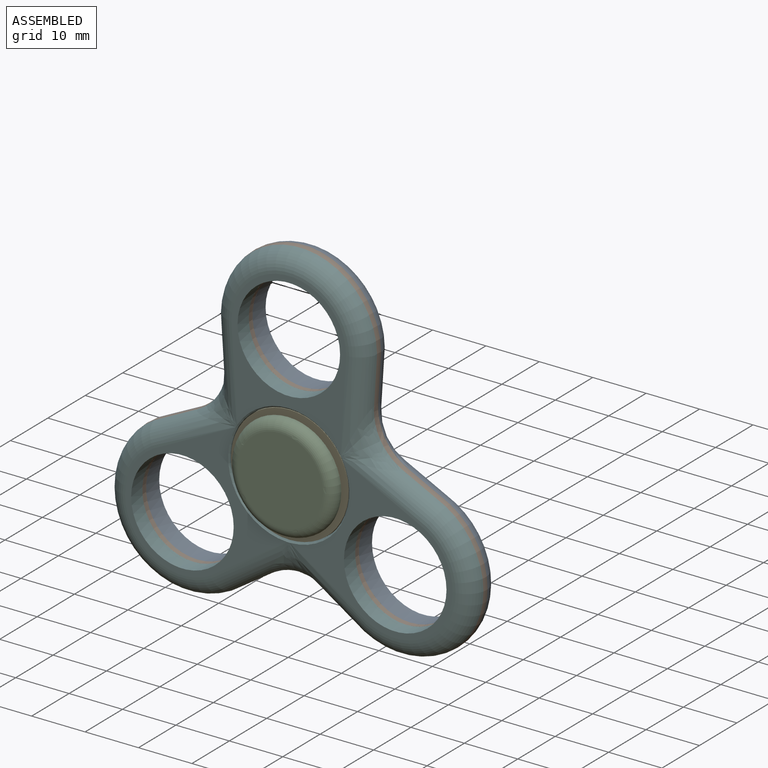
[diagram: assembled view]
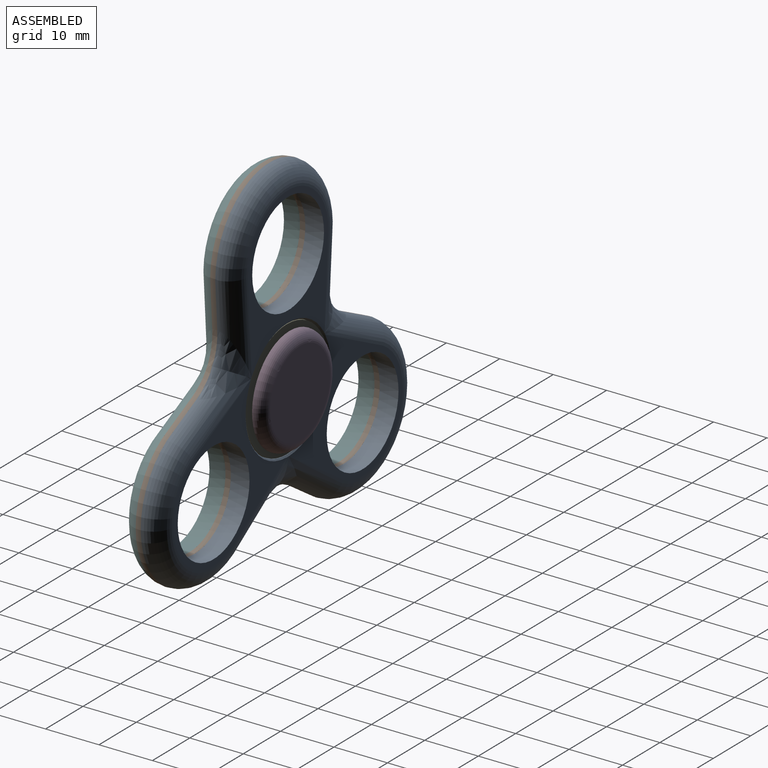
[diagram: assembled view, second angle]
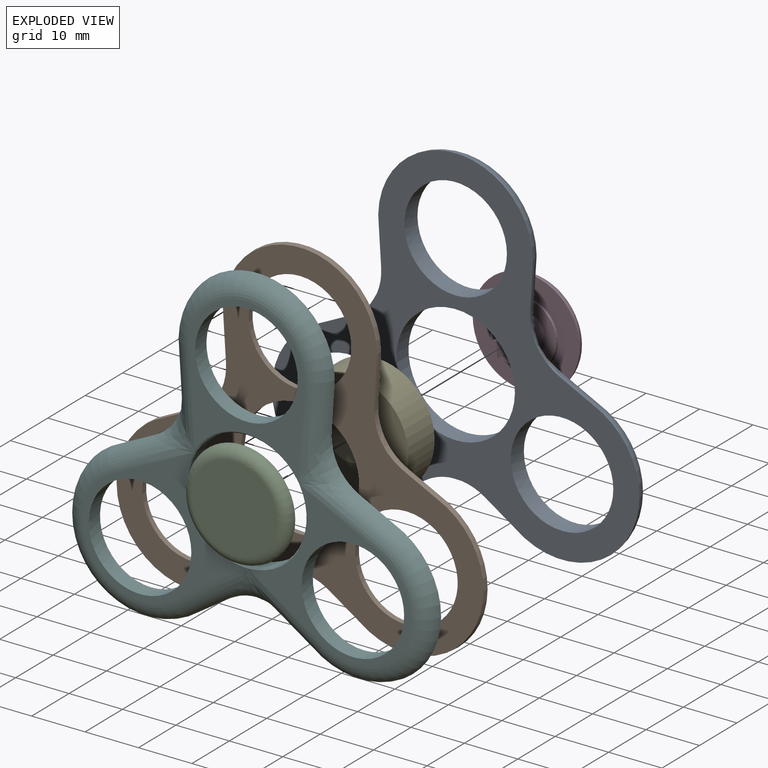
[diagram: exploded view]
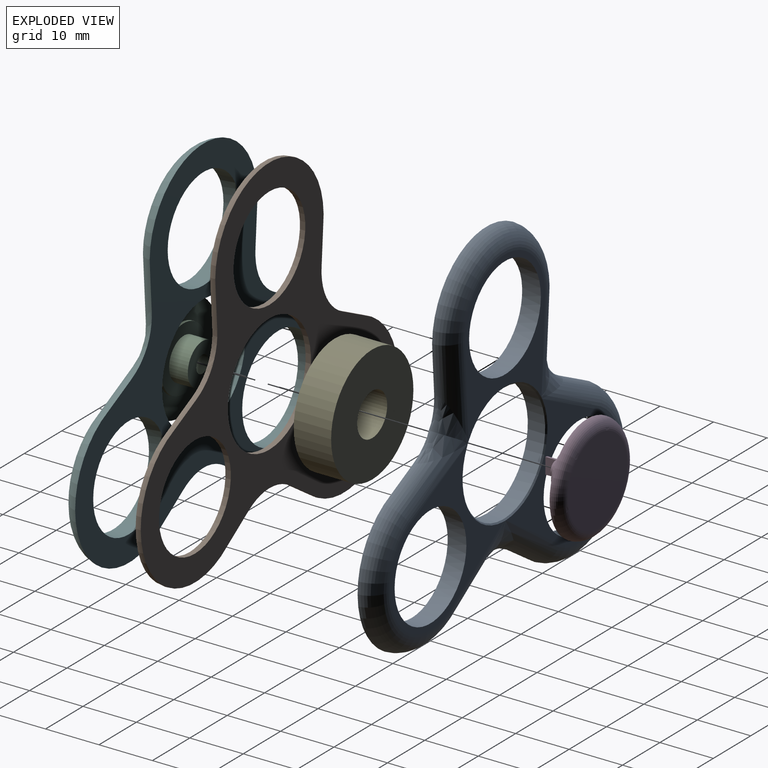
[diagram: exploded view, second angle]
ASSEMBLY  parts=6 mates=5
PART A: 32 faces, bbox 71.5x4.1x66.2 mm
  f0: cylinder r=9.6mm len=19.2mm, axis (0,1,0), area 211.1mm2, adj f21,f31
  f1: cylinder r=9.6mm len=19.2mm, axis (0,1,0), area 211.1mm2, adj f24,f31
  f2: cylinder r=9.6mm len=19.2mm, axis (0,1,0), area 211.1mm2, adj f27,f31
  f3: cylinder r=11.1mm len=22.2mm, axis (0,1,0), area 226.7mm2, adj f16,f17,f18,f19,f20,f22,f23,f25
  f4: bspline ~9.87x9.6mm, area 49.8mm2, adj f10,f13,f29,f31
  f5: bspline ~9.87x9.6mm, area 49.8mm2, adj f6,f7,f30,f31
  f6: cylinder r=3.75mm len=15.93mm, axis (-0.06,0,1), area 57.7mm2, adj f5,f8,f26,f27,f31
  f7: cylinder r=3.75mm len=15.75mm, axis (0.9,0,0.44), area 57.7mm2, adj f5,f9,f24,f25,f31
  f8: torus R=10.75mm, axis (0,-1,0), area 251.4mm2, adj f6,f10,f27,f31
  f9: torus R=10.75mm, axis (0,-1,0), area 251.4mm2, adj f7,f12,f24,f31
  f10: cylinder r=3.75mm len=15.93mm, axis (-0.06,0,-1), area 57.7mm2, adj f4,f8,f23,f27,f31
  f11: bspline ~11.09x8.2mm, area 49.8mm2, adj f12,f14,f28,f31
  f12: cylinder r=3.75mm len=15.16mm, axis (-0.83,0,-0.55), area 57.7mm2, adj f9,f11,f22,f24,f31
  f13: cylinder r=3.75mm len=15.75mm, axis (0.9,0,-0.44), area 57.7mm2, adj f4,f15,f20,f21,f31
  f14: cylinder r=3.75mm len=15.16mm, axis (-0.83,0,0.55), area 57.7mm2, adj f11,f15,f19,f21,f31
  f15: torus R=10.75mm, axis (0,-1,0), area 251.4mm2, adj f13,f14,f21,f31
  f16: cone r=11.35mm half-angle=45deg, axis (0,1,0), area 8.1mm2, adj f3,f22,f24,f25
  f17: cone r=11.35mm half-angle=45deg, axis (0,1,0), area 8.1mm2, adj f3,f19,f20,f21
  f18: cone r=11.35mm half-angle=45deg, axis (0,1,0), area 8.1mm2, adj f3,f23,f26,f27
  f19: bspline ~0.26x0.25mm, area 0.1mm2, adj f3,f14,f17,f28
  f20: bspline ~0.31x0.28mm, area 0.1mm2, adj f3,f13,f17,f29
  f21: plane 30.32x27.62mm, normal (0,1,0), area 165.9mm2, adj f0,f13,f14,f15,f17
  f22: bspline ~0.26x0.25mm, area 0.1mm2, adj f3,f12,f16,f28
  f23: bspline ~0.31x0.28mm, area 0.1mm2, adj f3,f10,f18,f29
  f24: plane 30.32x27.62mm, normal (0,1,0), area 165.9mm2, adj f1,f7,f9,f12,f16
  f25: bspline ~0.31x0.28mm, area 0.1mm2, adj f3,f7,f16,f30
  f26: bspline ~0.31x0.28mm, area 0.1mm2, adj f3,f6,f18,f30
  f27: plane 27.77x21.5mm, normal (0,1,0), area 165.9mm2, adj f2,f6,f8,f10,f18
  f28: bspline ~0.33x0.26mm, area 0.1mm2, adj f3,f11,f19,f22
  f29: bspline ~0.41x0.39mm, area 0.1mm2, adj f3,f4,f20,f23
  f30: bspline ~0.41x0.39mm, area 0.1mm2, adj f3,f5,f25,f26
  f31: plane 69.09x63.76mm, normal (0,-1,0), area 1350.8mm2, adj f0,f1,f2,f3,f4,f5,f6,f7
PART B: 18 faces, bbox 72x4x66.7 mm
  f0: cylinder r=11.1mm len=22.2mm, axis (0,1,0), area 69.7mm2, adj f4,f17
  f1: cylinder r=9.6mm len=19.2mm, axis (0,1,0), area 60.3mm2, adj f4,f17
  f2: cylinder r=9.6mm len=19.2mm, axis (0,1,0), area 60.3mm2, adj f4,f17
  f3: cylinder r=9.6mm len=19.2mm, axis (0,1,0), area 60.3mm2, adj f4,f17
  f4: plane 69.5x64.16mm, normal (0,-1,0), area 1333.9mm2, adj f0,f1,f2,f3,f5,f6,f7,f8
  f5: torus R=10.75mm, axis (0,-1,0), area 49.5mm2, adj f4,f6,f7,f17
  f6: cylinder r=3.75mm len=5.78mm, axis (-0.83,0,0.55), area 6.8mm2, adj f4,f5,f9,f17
  f7: cylinder r=3.75mm len=6.21mm, axis (0.9,0,-0.44), area 6.8mm2, adj f4,f5,f16,f17
  f8: cylinder r=3.75mm len=5.78mm, axis (-0.83,0,-0.55), area 6.8mm2, adj f4,f9,f10,f17
  f9: bspline ~11.09x3.69mm, area 7.8mm2, adj f4,f6,f8,f17
  f10: torus R=10.75mm, axis (0,-1,0), area 49.5mm2, adj f4,f8,f11,f17
  f11: cylinder r=3.75mm len=6.21mm, axis (0.9,0,0.44), area 6.8mm2, adj f4,f10,f15,f17
  f12: cylinder r=3.75mm len=6.88mm, axis (-0.06,0,-1), area 6.8mm2, adj f4,f13,f16,f17
  f13: torus R=10.75mm, axis (0,-1,0), area 49.5mm2, adj f4,f12,f14,f17
  f14: cylinder r=3.75mm len=6.88mm, axis (-0.06,0,1), area 6.8mm2, adj f4,f13,f15,f17
  f15: bspline ~9.6x5.97mm, area 7.8mm2, adj f4,f11,f14,f17
  f16: bspline ~9.6x5.97mm, area 7.8mm2, adj f4,f7,f12,f17
  f17: plane 69.09x63.76mm, normal (0,1,0), area 1350.8mm2, adj f0,f1,f2,f3,f5,f6,f7,f8
PART C: 11 faces, bbox 21.6x6x21.6 mm
  f0: plane 3.2x1.6mm, normal (0,-1,0), area 4mm2, adj f6,f9
  f1: plane 20x20mm, normal (0,-1,0), area 201.1mm2, adj f3,f4
  f2: plane 16x16mm, normal (0,1,0), area 201.1mm2, adj f3
  f3: torus R=8mm, axis (0,-1,0), area 183mm2, adj f1,f2
  f4: cylinder r=6mm len=12mm, axis (0,1,0), area 18.8mm2, adj f1,f5
  f5: plane 12x12mm, normal (0,-1,0), area 65.3mm2, adj f4,f8
  f6: cylinder r=1.6mm len=4mm, axis (0,1,0), area 30.2mm2, adj f0,f7,f9,f10
  f7: plane 7.8x7.8mm, normal (0,-1,0), area 39.7mm2, adj f6,f8
  f8: cylinder r=3.9mm len=7.8mm, axis (0,1,0), area 85.8mm2, adj f5,f7
  f9: plane 3.2x2mm, normal (-1,0,0), area 6.4mm2, adj f0,f6,f10
  f10: plane 3.2x1.6mm, normal (0,-1,0), area 4mm2, adj f6,f9
PART D: 11 faces, bbox 21.6x9.8x21.6 mm
  f0: plane 20x20mm, normal (0,-1,0), area 201.1mm2, adj f2,f3
  f1: plane 16x16mm, normal (0,1,0), area 201.1mm2, adj f2
  f2: torus R=8mm, axis (0,-1,0), area 183mm2, adj f0,f1
  f3: cylinder r=6mm len=12mm, axis (0,1,0), area 18.8mm2, adj f0,f4
  f4: plane 12x12mm, normal (0,-1,0), area 65.3mm2, adj f3,f5
  f5: cylinder r=3.9mm len=7.8mm, axis (0,1,0), area 85.8mm2, adj f4,f6
  f6: plane 7.8x7.8mm, normal (0,-1,0), area 40.7mm2, adj f5,f8
  f7: plane 3x1.5mm, normal (0,-1,0), area 3.5mm2, adj f8,f9
  f8: cylinder r=1.5mm len=3.8mm, axis (0,1,0), area 26.4mm2, adj f6,f7,f9,f10
  f9: plane 3x2mm, normal (1,0,0), area 6mm2, adj f7,f8,f10
  f10: plane 3x1.5mm, normal (0,-1,0), area 3.5mm2, adj f8,f9
PART E: 4 faces, bbox 22x7x22 mm
  f0: cylinder r=4mm len=8mm, axis (0,1,0), area 175.9mm2, adj f2,f3
  f1: cylinder r=11mm len=22mm, axis (0,1,0), area 483.8mm2, adj f2,f3
  f2: plane 22x22mm, normal (0,-1,0), area 329.9mm2, adj f0,f1
  f3: plane 22x22mm, normal (0,1,0), area 329.9mm2, adj f0,f1
PART F: 32 faces, bbox 71.2x3.8x65.9 mm
  f0: plane 27.77x21.5mm, normal (0,-1,0), area 165.9mm2, adj f2,f11,f13,f15,f28
  f1: plane 30.32x27.62mm, normal (0,-1,0), area 165.9mm2, adj f3,f7,f8,f9,f20
  f2: cylinder r=9.6mm len=19.2mm, axis (0,1,0), area 181mm2, adj f0,f31
  f3: cylinder r=9.6mm len=19.2mm, axis (0,1,0), area 181mm2, adj f1,f31
  f4: cylinder r=9.6mm len=19.2mm, axis (0,1,0), area 181mm2, adj f6,f31
  f5: cylinder r=11.1mm len=22.2mm, axis (0,1,0), area 191.8mm2, adj f19,f20,f21,f22,f23,f24,f25,f26
  f6: plane 30.32x27.62mm, normal (0,-1,0), area 165.9mm2, adj f4,f10,f12,f14,f25
  f7: torus R=10.75mm, axis (0,-1,0), area 226.5mm2, adj f1,f8,f9,f31
  f8: cylinder r=3.75mm len=15.12mm, axis (-0.83,0,0.55), area 54.3mm2, adj f1,f7,f16,f19,f31
  f9: cylinder r=3.75mm len=15.72mm, axis (0.9,0,-0.44), area 54.3mm2, adj f1,f7,f17,f22,f31
  f10: cylinder r=3.75mm len=15.12mm, axis (-0.83,0,-0.55), area 54.3mm2, adj f6,f12,f16,f23,f31
  f11: cylinder r=3.75mm len=15.92mm, axis (-0.06,0,-1), area 54.3mm2, adj f0,f13,f17,f26,f31
  f12: torus R=10.75mm, axis (0,-1,0), area 226.5mm2, adj f6,f10,f14,f31
  f13: torus R=10.75mm, axis (0,-1,0), area 226.5mm2, adj f0,f11,f15,f31
  f14: cylinder r=3.75mm len=15.72mm, axis (0.9,0,0.44), area 54.3mm2, adj f6,f12,f18,f27,f31
  f15: cylinder r=3.75mm len=15.92mm, axis (-0.06,0,1), area 54.3mm2, adj f0,f13,f18,f30,f31
  f16: bspline ~10.95x8.1mm, area 42.7mm2, adj f8,f10,f21,f31
  f17: bspline ~9.75x9.48mm, area 42.7mm2, adj f9,f11,f24,f31
  f18: bspline ~9.75x9.48mm, area 42.7mm2, adj f14,f15,f29,f31
  f19: bspline ~0.26x0.25mm, area 0.1mm2, adj f5,f8,f20,f21
  f20: cone r=11.1mm half-angle=45deg, axis (0,-1,0), area 8.1mm2, adj f1,f5,f19,f22
  f21: bspline ~0.33x0.26mm, area 0.1mm2, adj f5,f16,f19,f23
  f22: bspline ~0.31x0.28mm, area 0.1mm2, adj f5,f9,f20,f24
  f23: bspline ~0.26x0.25mm, area 0.1mm2, adj f5,f10,f21,f25
  f24: bspline ~0.41x0.39mm, area 0.1mm2, adj f5,f17,f22,f26
  f25: cone r=11.1mm half-angle=45deg, axis (0,-1,0), area 8.1mm2, adj f5,f6,f23,f27
  f26: bspline ~0.31x0.28mm, area 0.1mm2, adj f5,f11,f24,f28
  f27: bspline ~0.31x0.28mm, area 0.1mm2, adj f5,f14,f25,f29
  f28: cone r=11.1mm half-angle=45deg, axis (0,-1,0), area 8.1mm2, adj f0,f5,f26,f30
  f29: bspline ~0.41x0.39mm, area 0.1mm2, adj f5,f18,f27,f30
  f30: bspline ~0.31x0.28mm, area 0.1mm2, adj f5,f15,f28,f29
  f31: plane 68.69x63.35mm, normal (0,1,0), area 1333.9mm2, adj f2,f3,f4,f5,f7,f8,f9,f10
PLACE A t=(-54.09,-26.46,30.02)mm
PLACE B t=(-54.09,-26.46,30.02)mm
PLACE C rot(axis=(1,0,0),180deg) t=(-54.09,-36.21,30.02)mm
PLACE D t=(-54.09,-24.21,30.02)mm
PLACE E t=(-2.03,-26.71,3.05)mm
PLACE F t=(-54.09,-26.46,30.02)mm
MATE fastened E.f0 <-> F.f5  axis (0,1,0) through (-54.09,-33.71,30.02)mm
MATE fastened C.f3 <-> E.f0  axis (0,1,0) through (-54.09,-33.71,30.02)mm
MATE fastened C.f3 <-> D.f2  axis (0,1,0) through (-54.09,-34.21,30.02)mm
MATE fastened A.f3 <-> B.f0  axis (0,-1,0) through (-54.09,-29.96,30.02)mm
MATE fastened B.f0 <-> F.f5  axis (0,-1,0) through (-54.09,-30.96,30.02)mm
